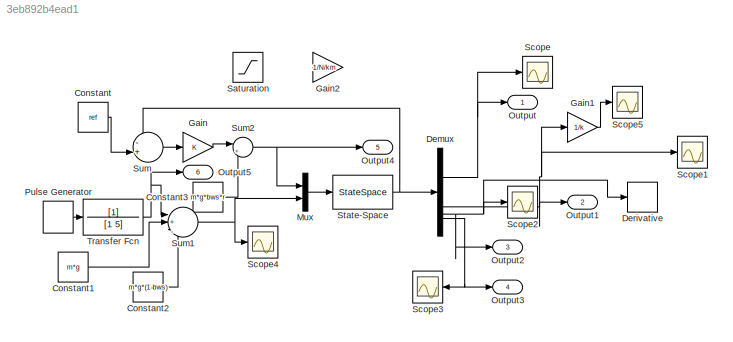
MODEL slx_3eb892b4ead1
KIND model
CONFIG AbsTol = auto
CONFIG EnableMultiTasking = off
CONFIG FixedStep = auto
CONFIG MaxStep = auto
CONFIG MinStep = auto
CONFIG RelTol = 1e-3
CONFIG SampleTimeConstraint = Unconstrained
CONFIG SolverName = VariableStepAuto
CONFIG StartTime = 0.0
CONFIG StopTime = 10.0
BLOCK [Constant] Constant
  Value = ref
  VectorParams1D = off
BLOCK [Constant] Constant1
  Value = m*g
BLOCK [Constant] Constant2
  Value = m*g*(1-bws)
BLOCK [Constant] Constant3
  Value = m*g*bws*r
BLOCK [Demux] Demux
BLOCK [Derivative] Derivative
BLOCK [Gain] Gain
  Gain = K
  Multiplication = Matrix(K*u)
BLOCK [Gain] Gain1
  Gain = 1/k
BLOCK [Gain] Gain2
  Gain = 1/N/km
BLOCK [Mux] Mux
  DisplayOption = bar
  Inputs = 2
BLOCK [Outport] Output
BLOCK [Outport] Output1
  Port = 2
BLOCK [Outport] Output2
  Port = 3
BLOCK [Outport] Output3
  Port = 4
BLOCK [Outport] Output4
  Port = 5
BLOCK [Outport] Output5
  Port = 6
BLOCK [DiscretePulseGenerator] Pulse Generator
  Amplitude = 5
  Period = 10
  PulseType = Time based
  PulseWidth = 30
BLOCK [Saturate] Saturation
  LowerLimit = -Tmax
  UpperLimit = Tmax
BLOCK [Scope] Scope
  Floating = off
  NumInputPorts = 1
  ScopeSpecificationString = Simulink.scopes.TimeScopeBlockCfg('CurrentConfiguration', extmgr.ConfigurationSet(extmgr.Configuration('Core','General UI',true),extmgr.Configuration('Core','Source UI',true),extmgr.Configuration('Sources','WiredSimulink',true),extmgr.Configuration('Visuals','Time Domain',true,'SerializedDisplays',{struct('MinYLimReal','-14.49796','MaxYLimReal','9.18961','YLabelReal','','MinYLimMag','0.00000','Max...<+1360ch>
BLOCK [Scope] Scope1
  Floating = off
  NumInputPorts = 1
  ScopeSpecificationString = Simulink.scopes.TimeScopeBlockCfg('CurrentConfiguration', extmgr.ConfigurationSet(extmgr.Configuration('Core','General UI',true),extmgr.Configuration('Core','Source UI',true),extmgr.Configuration('Sources','WiredSimulink',true,'DataLoggingVariableName','ScopeData1'),extmgr.Configuration('Visuals','Time Domain',true,'SerializedDisplays',{struct('MinYLimReal','-27.51446','MaxYLimReal','3.05716','YLa...<+1399ch>
BLOCK [Scope] Scope2
  Floating = off
  NumInputPorts = 1
  ScopeSpecificationString = Simulink.scopes.TimeScopeBlockCfg('CurrentConfiguration', extmgr.ConfigurationSet(extmgr.Configuration('Core','General UI',true),extmgr.Configuration('Core','Source UI',true),extmgr.Configuration('Sources','WiredSimulink',true,'DataLoggingVariableName','ScopeData2'),extmgr.Configuration('Visuals','Time Domain',true,'SerializedDisplays',{struct('MinYLimReal','-0.07467','MaxYLimReal','0.5606','YLabe...<+1391ch>
BLOCK [Scope] Scope3
  Floating = off
  NumInputPorts = 1
  ScopeSpecificationString = Simulink.scopes.TimeScopeBlockCfg('CurrentConfiguration', extmgr.ConfigurationSet(extmgr.Configuration('Core','General UI',true),extmgr.Configuration('Core','Source UI',true),extmgr.Configuration('Sources','WiredSimulink',true,'DataLoggingVariableName','ScopeData3'),extmgr.Configuration('Visuals','Time Domain',true,'SerializedDisplays',{struct('MinYLimReal','-0.01505','MaxYLimReal','0.13546','YLab...<+1395ch>
BLOCK [Scope] Scope4
  Floating = off
  NumInputPorts = 1
  ScopeSpecificationString = Simulink.scopes.TimeScopeBlockCfg('CurrentConfiguration', extmgr.ConfigurationSet(extmgr.Configuration('Core','General UI',true),extmgr.Configuration('Core','Source UI',true),extmgr.Configuration('Sources','WiredSimulink',true,'DataLoggingVariableName','ScopeData4'),extmgr.Configuration('Visuals','Time Domain',true,'SerializedDisplays',{struct('MinYLimReal','-5.96104','MaxYLimReal','-5.21077','YLa...<+1442ch>
BLOCK [Scope] Scope5
  Floating = off
  NumInputPorts = 1
  ScopeSpecificationString = Simulink.scopes.TimeScopeBlockCfg('CurrentConfiguration', extmgr.ConfigurationSet(extmgr.Configuration('Core','General UI',true),extmgr.Configuration('Core','Source UI',true),extmgr.Configuration('Sources','WiredSimulink',true,'DataLoggingVariableName','ScopeData1'),extmgr.Configuration('Visuals','Time Domain',true,'SerializedDisplays',{struct('MinYLimReal','-0.03821','MaxYLimReal','0.00425','YLab...<+1393ch>
BLOCK [StateSpace] State-Space
  A = A
  B = B
  C = C
  D = D
  InitialCondition = x0
  ParameterTunability = Unconstrained
BLOCK [Sum] Sum
  Inputs = -+|
BLOCK [Sum] Sum1
  Inputs = |+|-|+
BLOCK [Sum] Sum2
  Inputs = |++
BLOCK [TransferFcn] Transfer Fcn
  Denominator = [1 5]
LINE Constant1:1 -> Sum1:2
LINE Constant2:1 -> Sum1:3
LINE Constant3:1 -> Sum2:2
LINE Constant:1 -> Sum:2
NET Demux:1 -> Output:1, Scope:1
NET Demux:2 -> Gain1:1, Output1:1, Scope1:1
NET Demux:3 -> Derivative:1, Output2:1, Scope2:1
NET Demux:4 -> Output3:1, Scope3:1
LINE Gain1:1 -> Scope5:1
LINE Gain:1 -> Sum2:1
LINE Mux:1 -> State-Space:1
LINE Pulse Generator:1 -> Transfer Fcn:1
NET State-Space:1 -> Demux:1, Sum:1
NET Sum1:1 -> Mux:2, Scope4:1
NET Sum2:1 -> Mux:1, Output4:1
LINE Sum:1 -> Gain:1
NET Transfer Fcn:1 -> Output5:1, Sum1:1
note: NET lines group one-source signal fan-out (src -> all destinations, sorted); 1:1 wires keep LINE
